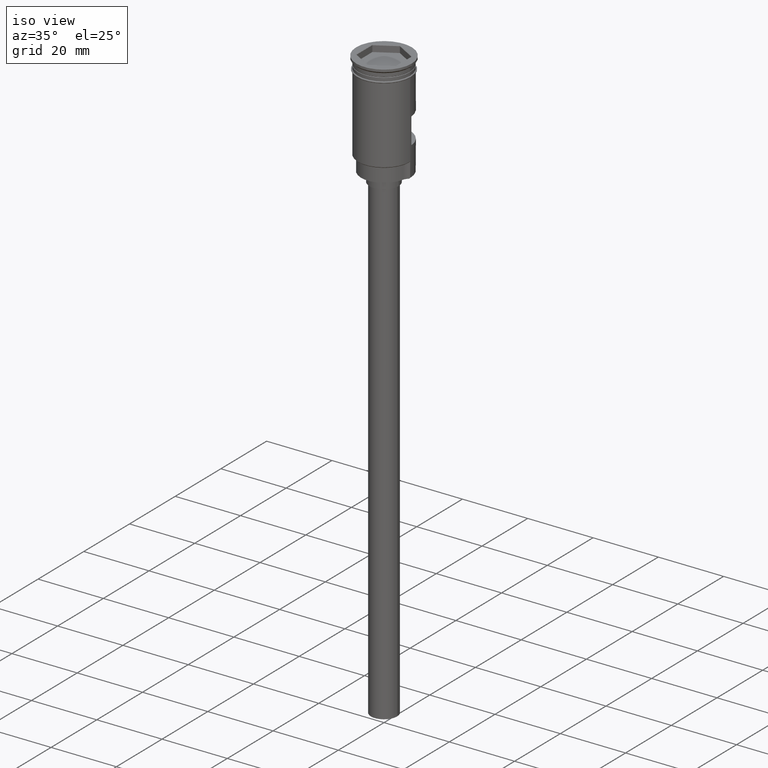
[diagram: clean part render]
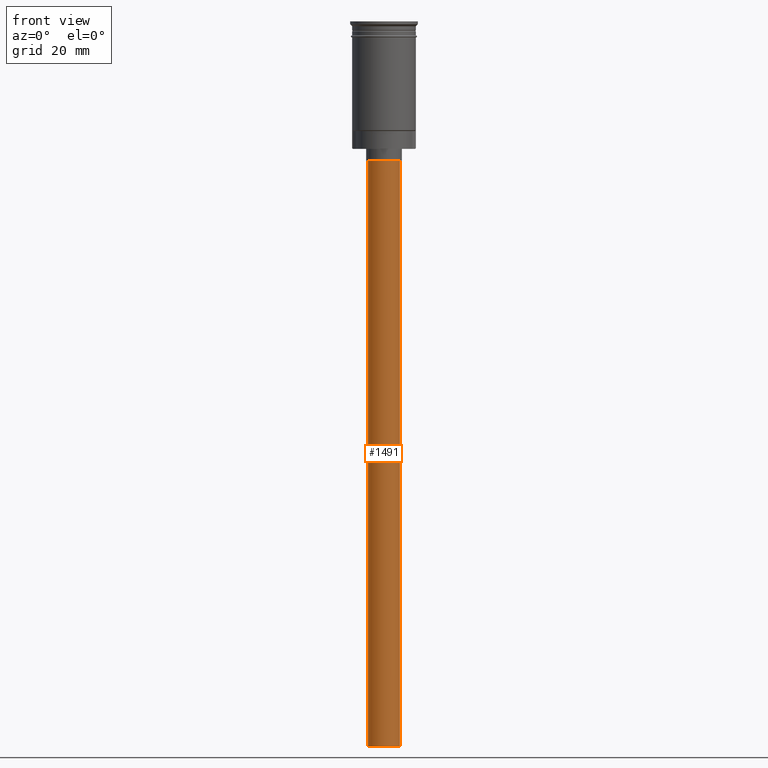
[diagram: tour spotlight — one face highlighted and labeled with its STEP entity id]
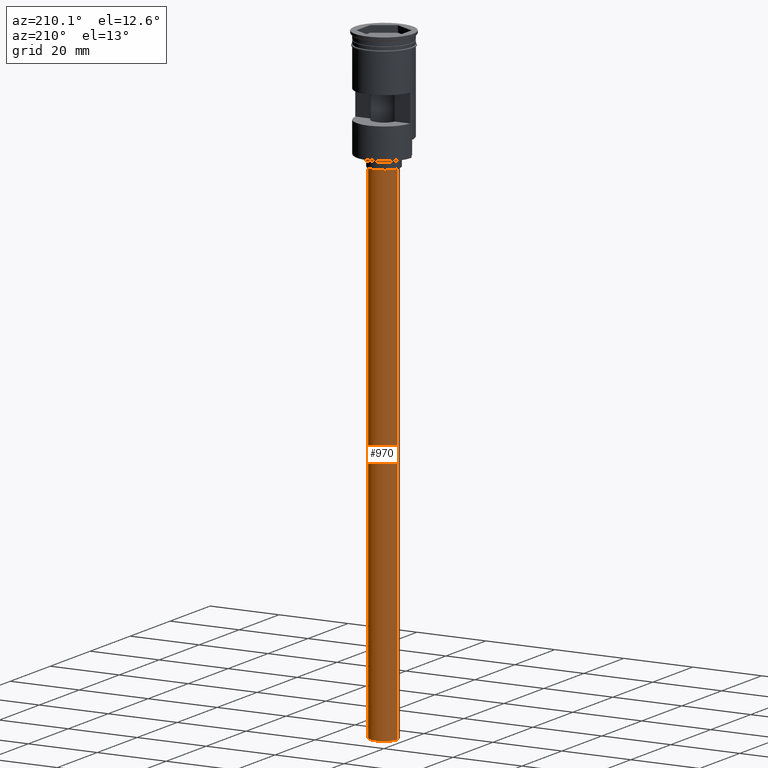
[diagram: tour spotlight — one face highlighted and labeled with its STEP entity id]
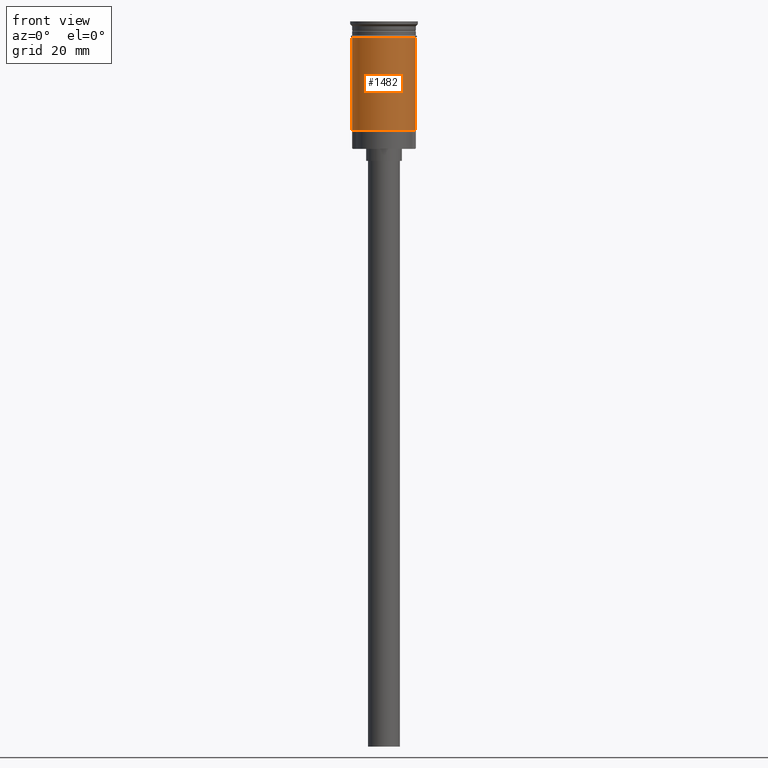
[diagram: tour spotlight — one face highlighted and labeled with its STEP entity id]
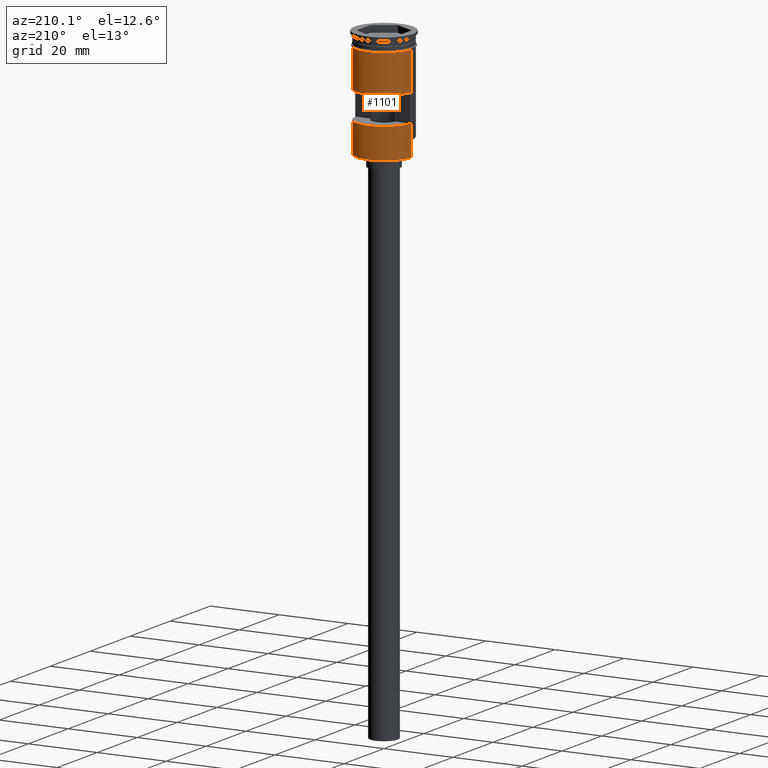
[diagram: tour spotlight — one face highlighted and labeled with its STEP entity id]
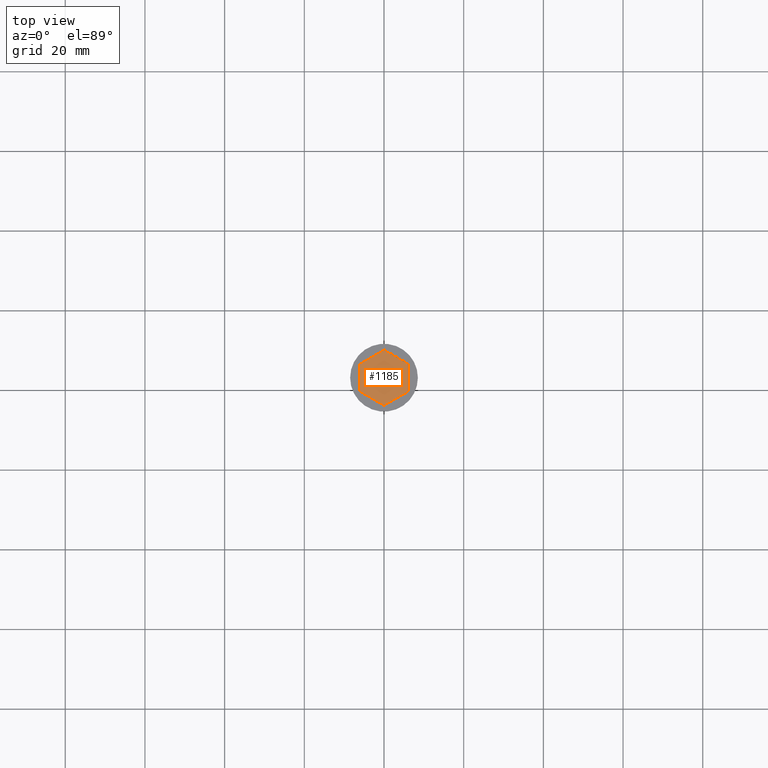
[diagram: tour spotlight — one face highlighted and labeled with its STEP entity id]
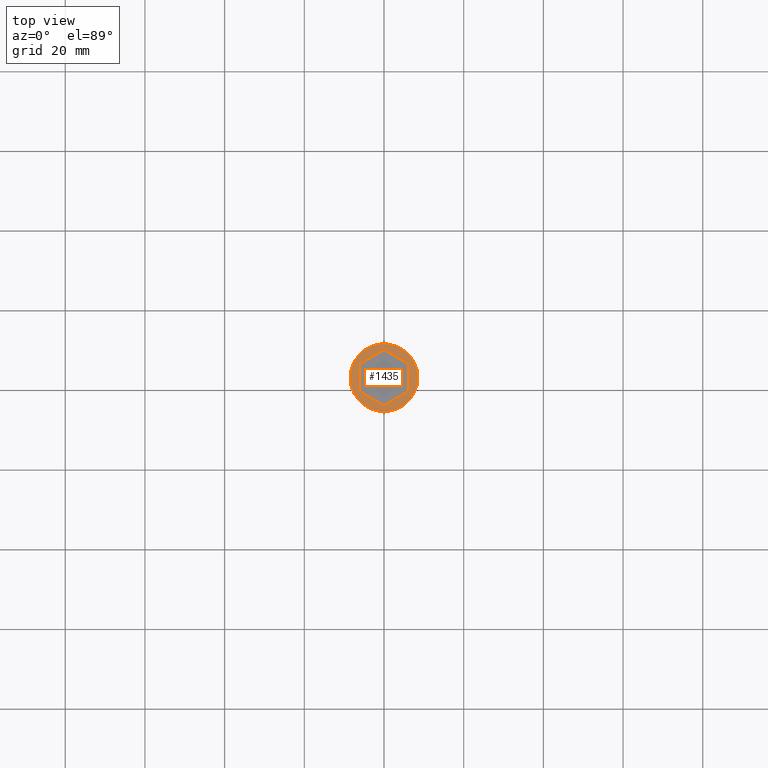
[diagram: tour spotlight — one face highlighted and labeled with its STEP entity id]
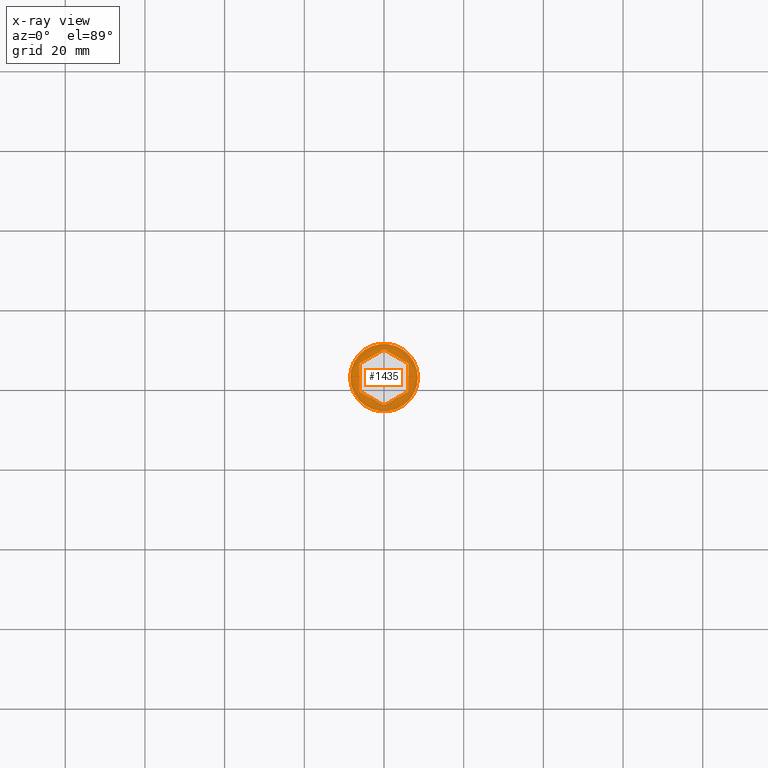
[diagram: x-ray of the same camera — body ghosted, this tour face saturated]
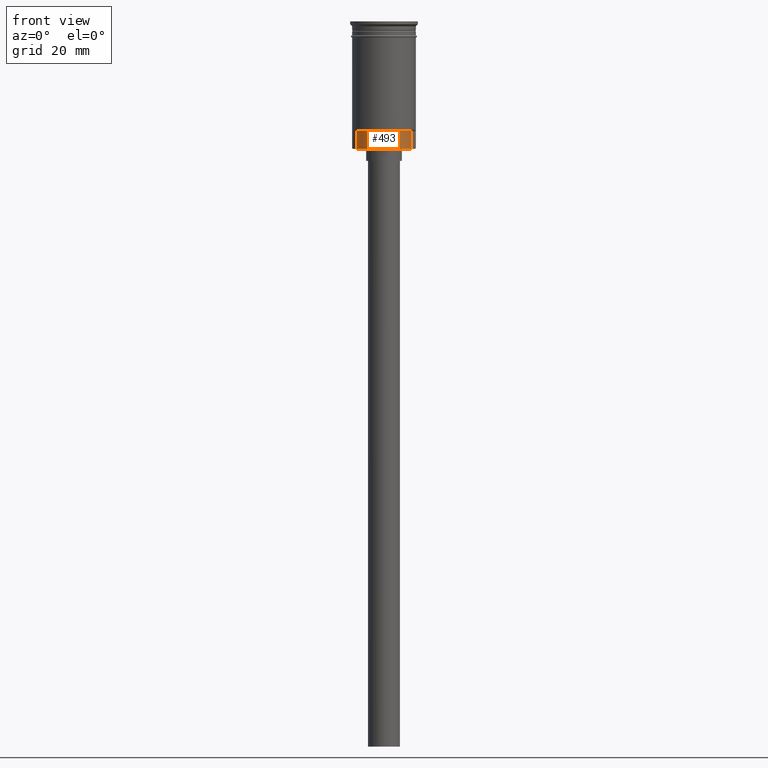
[diagram: tour spotlight — one face highlighted and labeled with its STEP entity id]
A machine part: a face-by-face anatomy tour. The part has 55 B-rep faces; the first image is the clean iso view, then the 7 largest visible faces are spotlighted one at a time (largest first), each with its STEP entity span.

Face 1 — front view, entity #1491. In plain terms, the highlighted cylindrical surface (edge-blend (fillet) strip) has radius 4 mm, axis along (-0, -0, 1).
Definition (entity closure, byte-faithful):
#19 = DIRECTION ( 'NONE',  ( -0.000000000000000000, -0.000000000000000000, 1.000000000000000000 ) ) ;
#53 = VERTEX_POINT ( 'NONE', #577 ) ;
#105 = EDGE_CURVE ( 'NONE', #567, #1289, #223, .T. ) ;
#223 = LINE ( 'NONE', #1086, #329 ) ;
#234 = DIRECTION ( 'NONE',  ( -0.000000000000000000, -0.000000000000000000, 1.000000000000000000 ) ) ;
#267 = CYLINDRICAL_SURFACE ( 'NONE', #1468, 4.000000000000000000 ) ;
#286 = EDGE_CURVE ( 'NONE', #53, #567, #1381, .T. ) ;
#329 = VECTOR ( 'NONE', #234, 1000.000000000000000 ) ;
#393 = DIRECTION ( 'NONE',  ( 0.000000000000000000, 0.000000000000000000, -1.000000000000000000 ) ) ;
#550 = LINE ( 'NONE', #1393, #1146 ) ;
#554 = CARTESIAN_POINT ( 'NONE',  ( 0.000000000000000000, 0.000000000000000000, -182.0000000000000000 ) ) ;
#567 = VERTEX_POINT ( 'NONE', #813 ) ;
#577 = CARTESIAN_POINT ( 'NONE',  ( 4.000000000000000000, 0.000000000000000000, -182.0000000000000000 ) ) ;
#578 = CARTESIAN_POINT ( 'NONE',  ( -4.000000000000000000, 4.898587196589412829E-16, -35.00000000000000000 ) ) ;
#652 = DIRECTION ( 'NONE',  ( -1.000000000000000000, 0.000000000000000000, 0.000000000000000000 ) ) ;
#673 = EDGE_LOOP ( 'NONE', ( #1579, #917, #819, #1015 ) ) ;
#725 = AXIS2_PLACEMENT_3D ( 'NONE', #881, #393, #1603 ) ;
#751 = DIRECTION ( 'NONE',  ( 1.000000000000000000, 0.000000000000000000, 0.000000000000000000 ) ) ;
#813 = CARTESIAN_POINT ( 'NONE',  ( -4.000000000000000000, 4.898587196589412829E-16, -182.0000000000000000 ) ) ;
#819 = ORIENTED_EDGE ( 'NONE', *, *, #1587, .T. ) ;
#865 = CARTESIAN_POINT ( 'NONE',  ( 4.000000000000000000, 0.000000000000000000, -35.00000000000000000 ) ) ;
#872 = FACE_OUTER_BOUND ( 'NONE', #673, .T. ) ;
#881 = CARTESIAN_POINT ( 'NONE',  ( 0.000000000000000000, 0.000000000000000000, -35.00000000000000000 ) ) ;
#896 = AXIS2_PLACEMENT_3D ( 'NONE', #554, #1045, #652 ) ;
#917 = ORIENTED_EDGE ( 'NONE', *, *, #286, .F. ) ;
#1015 = ORIENTED_EDGE ( 'NONE', *, *, #1091, .T. ) ;
#1045 = DIRECTION ( 'NONE',  ( 0.000000000000000000, 0.000000000000000000, -1.000000000000000000 ) ) ;
#1086 = CARTESIAN_POINT ( 'NONE',  ( -4.000000000000000000, 4.898587196589412829E-16, -182.0000000000000000 ) ) ;
#1091 = EDGE_CURVE ( 'NONE', #1424, #1289, #1140, .T. ) ;
#1140 = CIRCLE ( 'NONE', #725, 4.000000000000000000 ) ;
#1146 = VECTOR ( 'NONE', #1295, 1000.000000000000000 ) ;
#1289 = VERTEX_POINT ( 'NONE', #578 ) ;
#1295 = DIRECTION ( 'NONE',  ( -0.000000000000000000, -0.000000000000000000, 1.000000000000000000 ) ) ;
#1356 = CARTESIAN_POINT ( 'NONE',  ( 0.000000000000000000, 0.000000000000000000, -182.0000000000000000 ) ) ;
#1381 = CIRCLE ( 'NONE', #896, 4.000000000000000000 ) ;
#1393 = CARTESIAN_POINT ( 'NONE',  ( 4.000000000000000000, 0.000000000000000000, -182.0000000000000000 ) ) ;
#1424 = VERTEX_POINT ( 'NONE', #865 ) ;
#1468 = AXIS2_PLACEMENT_3D ( 'NONE', #1356, #19, #751 ) ;
#1491 = ADVANCED_FACE ( 'NONE', ( #872 ), #267, .T. ) ;
#1579 = ORIENTED_EDGE ( 'NONE', *, *, #105, .F. ) ;
#1587 = EDGE_CURVE ( 'NONE', #53, #1424, #550, .T. ) ;
#1603 = DIRECTION ( 'NONE',  ( -1.000000000000000000, 0.000000000000000000, 0.000000000000000000 ) ) ;

Face 2 — auxiliary view, entity #970. In plain terms, the highlighted cylindrical surface (edge-blend (fillet) strip) has radius 4 mm, axis along (-0, -0, 1).
Definition (entity closure, byte-faithful):
#15 = AXIS2_PLACEMENT_3D ( 'NONE', #1502, #1267, #28 ) ;
#28 = DIRECTION ( 'NONE',  ( -1.000000000000000000, 0.000000000000000000, 0.000000000000000000 ) ) ;
#39 = AXIS2_PLACEMENT_3D ( 'NONE', #579, #837, #967 ) ;
#53 = VERTEX_POINT ( 'NONE', #577 ) ;
#105 = EDGE_CURVE ( 'NONE', #567, #1289, #223, .T. ) ;
#123 = ORIENTED_EDGE ( 'NONE', *, *, #1136, .F. ) ;
#223 = LINE ( 'NONE', #1086, #329 ) ;
#234 = DIRECTION ( 'NONE',  ( -0.000000000000000000, -0.000000000000000000, 1.000000000000000000 ) ) ;
#245 = CYLINDRICAL_SURFACE ( 'NONE', #39, 4.000000000000000000 ) ;
#319 = ORIENTED_EDGE ( 'NONE', *, *, #105, .T. ) ;
#329 = VECTOR ( 'NONE', #234, 1000.000000000000000 ) ;
#406 = CARTESIAN_POINT ( 'NONE',  ( 0.000000000000000000, 0.000000000000000000, -35.00000000000000000 ) ) ;
#550 = LINE ( 'NONE', #1393, #1146 ) ;
#567 = VERTEX_POINT ( 'NONE', #813 ) ;
#577 = CARTESIAN_POINT ( 'NONE',  ( 4.000000000000000000, 0.000000000000000000, -182.0000000000000000 ) ) ;
#578 = CARTESIAN_POINT ( 'NONE',  ( -4.000000000000000000, 4.898587196589412829E-16, -35.00000000000000000 ) ) ;
#579 = CARTESIAN_POINT ( 'NONE',  ( 0.000000000000000000, 0.000000000000000000, -182.0000000000000000 ) ) ;
#793 = EDGE_CURVE ( 'NONE', #1289, #1424, #899, .T. ) ;
#813 = CARTESIAN_POINT ( 'NONE',  ( -4.000000000000000000, 4.898587196589412829E-16, -182.0000000000000000 ) ) ;
#837 = DIRECTION ( 'NONE',  ( -0.000000000000000000, -0.000000000000000000, 1.000000000000000000 ) ) ;
#843 = ORIENTED_EDGE ( 'NONE', *, *, #793, .T. ) ;
#865 = CARTESIAN_POINT ( 'NONE',  ( 4.000000000000000000, 0.000000000000000000, -35.00000000000000000 ) ) ;
#899 = CIRCLE ( 'NONE', #1336, 4.000000000000000000 ) ;
#900 = CIRCLE ( 'NONE', #15, 4.000000000000000000 ) ;
#967 = DIRECTION ( 'NONE',  ( 1.000000000000000000, 0.000000000000000000, 0.000000000000000000 ) ) ;
#970 = ADVANCED_FACE ( 'NONE', ( #975 ), #245, .T. ) ;
#975 = FACE_OUTER_BOUND ( 'NONE', #1186, .T. ) ;
#1021 = DIRECTION ( 'NONE',  ( -1.000000000000000000, 0.000000000000000000, 0.000000000000000000 ) ) ;
#1086 = CARTESIAN_POINT ( 'NONE',  ( -4.000000000000000000, 4.898587196589412829E-16, -182.0000000000000000 ) ) ;
#1136 = EDGE_CURVE ( 'NONE', #567, #53, #900, .T. ) ;
#1146 = VECTOR ( 'NONE', #1295, 1000.000000000000000 ) ;
#1186 = EDGE_LOOP ( 'NONE', ( #123, #319, #843, #1239 ) ) ;
#1239 = ORIENTED_EDGE ( 'NONE', *, *, #1587, .F. ) ;
#1267 = DIRECTION ( 'NONE',  ( 0.000000000000000000, 0.000000000000000000, -1.000000000000000000 ) ) ;
#1289 = VERTEX_POINT ( 'NONE', #578 ) ;
#1295 = DIRECTION ( 'NONE',  ( -0.000000000000000000, -0.000000000000000000, 1.000000000000000000 ) ) ;
#1336 = AXIS2_PLACEMENT_3D ( 'NONE', #406, #1498, #1021 ) ;
#1393 = CARTESIAN_POINT ( 'NONE',  ( 4.000000000000000000, 0.000000000000000000, -182.0000000000000000 ) ) ;
#1424 = VERTEX_POINT ( 'NONE', #865 ) ;
#1498 = DIRECTION ( 'NONE',  ( 0.000000000000000000, 0.000000000000000000, -1.000000000000000000 ) ) ;
#1502 = CARTESIAN_POINT ( 'NONE',  ( 0.000000000000000000, 0.000000000000000000, -182.0000000000000000 ) ) ;
#1587 = EDGE_CURVE ( 'NONE', #53, #1424, #550, .T. ) ;

Face 3 — front view, entity #1482. In plain terms, the highlighted cylindrical surface (edge-blend (fillet) strip) has radius 8 mm, axis along (-0, -0, 1).
Definition (entity closure, byte-faithful):
#27 = VERTEX_POINT ( 'NONE', #1325 ) ;
#87 = DIRECTION ( 'NONE',  ( -0.000000000000000000, -0.000000000000000000, 1.000000000000000000 ) ) ;
#99 = CARTESIAN_POINT ( 'NONE',  ( -8.000000000000000000, 9.797174393178825657E-16, -3.999999999999997335 ) ) ;
#122 = AXIS2_PLACEMENT_3D ( 'NONE', #1466, #87, #587 ) ;
#127 = AXIS2_PLACEMENT_3D ( 'NONE', #378, #1366, #758 ) ;
#157 = LINE ( 'NONE', #653, #1473 ) ;
#187 = DIRECTION ( 'NONE',  ( -0.000000000000000000, -0.000000000000000000, 1.000000000000000000 ) ) ;
#368 = CARTESIAN_POINT ( 'NONE',  ( 0.000000000000000000, 0.000000000000000000, 0.000000000000000000 ) ) ;
#378 = CARTESIAN_POINT ( 'NONE',  ( 0.000000000000000000, 0.000000000000000000, -3.999999999999997335 ) ) ;
#459 = VECTOR ( 'NONE', #1436, 1000.000000000000000 ) ;
#466 = VERTEX_POINT ( 'NONE', #99 ) ;
#494 = CARTESIAN_POINT ( 'NONE',  ( 8.000000000000000000, 0.000000000000000000, -3.999999999999997335 ) ) ;
#563 = CIRCLE ( 'NONE', #127, 8.000000000000000000 ) ;
#587 = DIRECTION ( 'NONE',  ( -1.000000000000000000, 0.000000000000000000, 0.000000000000000000 ) ) ;
#653 = CARTESIAN_POINT ( 'NONE',  ( -7.999999999999996447, 9.797174393178821713E-16, 0.000000000000000000 ) ) ;
#714 = EDGE_CURVE ( 'NONE', #1474, #1135, #1586, .T. ) ;
#758 = DIRECTION ( 'NONE',  ( 1.000000000000000000, 0.000000000000000000, 0.000000000000000000 ) ) ;
#818 = ORIENTED_EDGE ( 'NONE', *, *, #714, .T. ) ;
#845 = ORIENTED_EDGE ( 'NONE', *, *, #991, .T. ) ;
#863 = CARTESIAN_POINT ( 'NONE',  ( 7.999999999999996447, 0.000000000000000000, 0.000000000000000000 ) ) ;
#991 = EDGE_CURVE ( 'NONE', #27, #1474, #1467, .T. ) ;
#1070 = EDGE_LOOP ( 'NONE', ( #1073, #845, #818, #1301 ) ) ;
#1073 = ORIENTED_EDGE ( 'NONE', *, *, #1537, .F. ) ;
#1125 = CARTESIAN_POINT ( 'NONE',  ( 7.999999999999996447, 9.797174393178821713E-16, -27.29999999999996518 ) ) ;
#1135 = VERTEX_POINT ( 'NONE', #494 ) ;
#1235 = CYLINDRICAL_SURFACE ( 'NONE', #1264, 7.999999999999996447 ) ;
#1264 = AXIS2_PLACEMENT_3D ( 'NONE', #368, #1478, #1349 ) ;
#1301 = ORIENTED_EDGE ( 'NONE', *, *, #1499, .F. ) ;
#1325 = CARTESIAN_POINT ( 'NONE',  ( -7.999999999999992895, 0.000000000000000000, -27.29999999999996518 ) ) ;
#1349 = DIRECTION ( 'NONE',  ( 1.000000000000000000, 0.000000000000000000, 0.000000000000000000 ) ) ;
#1366 = DIRECTION ( 'NONE',  ( -0.000000000000000000, -0.000000000000000000, 1.000000000000000000 ) ) ;
#1436 = DIRECTION ( 'NONE',  ( -0.000000000000000000, -0.000000000000000000, 1.000000000000000000 ) ) ;
#1466 = CARTESIAN_POINT ( 'NONE',  ( 0.000000000000000000, 0.000000000000000000, -27.29999999999996518 ) ) ;
#1467 = CIRCLE ( 'NONE', #122, 7.999999999999996447 ) ;
#1473 = VECTOR ( 'NONE', #187, 1000.000000000000000 ) ;
#1474 = VERTEX_POINT ( 'NONE', #1125 ) ;
#1478 = DIRECTION ( 'NONE',  ( -0.000000000000000000, -0.000000000000000000, 1.000000000000000000 ) ) ;
#1482 = ADVANCED_FACE ( 'NONE', ( #1589 ), #1235, .T. ) ;
#1499 = EDGE_CURVE ( 'NONE', #466, #1135, #563, .T. ) ;
#1537 = EDGE_CURVE ( 'NONE', #27, #466, #157, .T. ) ;
#1586 = LINE ( 'NONE', #863, #459 ) ;
#1589 = FACE_OUTER_BOUND ( 'NONE', #1070, .T. ) ;

Face 4 — auxiliary view, entity #1101. In plain terms, the highlighted cylindrical surface (edge-blend (fillet) strip) has radius 8 mm, axis along (-0, -0, 1).
Definition (entity closure, byte-faithful):
#23 = EDGE_CURVE ( 'NONE', #74, #717, #1407, .T. ) ;
#27 = VERTEX_POINT ( 'NONE', #1325 ) ;
#38 = DIRECTION ( 'NONE',  ( 1.000000000000000000, 0.000000000000000000, 0.000000000000000000 ) ) ;
#47 = EDGE_LOOP ( 'NONE', ( #48, #993, #639, #802 ) ) ;
#48 = ORIENTED_EDGE ( 'NONE', *, *, #1250, .F. ) ;
#74 = VERTEX_POINT ( 'NONE', #709 ) ;
#79 = DIRECTION ( 'NONE',  ( -0.000000000000000000, 2.344220913482172642E-16, -1.000000000000000000 ) ) ;
#99 = CARTESIAN_POINT ( 'NONE',  ( -8.000000000000000000, 9.797174393178825657E-16, -3.999999999999997335 ) ) ;
#116 = CARTESIAN_POINT ( 'NONE',  ( 0.000000000000000000, 0.000000000000000000, -31.79999999999997939 ) ) ;
#137 = DIRECTION ( 'NONE',  ( -0.000000000000000000, -0.000000000000000000, 1.000000000000000000 ) ) ;
#145 = EDGE_CURVE ( 'NONE', #629, #509, #1064, .T. ) ;
#146 = AXIS2_PLACEMENT_3D ( 'NONE', #338, #79, #596 ) ;
#148 = CARTESIAN_POINT ( 'NONE',  ( -7.977468270071648604, 0.6000000000000000888, -23.00000000000000000 ) ) ;
#157 = LINE ( 'NONE', #653, #1473 ) ;
#173 = VERTEX_POINT ( 'NONE', #372 ) ;
#187 = DIRECTION ( 'NONE',  ( -0.000000000000000000, -0.000000000000000000, 1.000000000000000000 ) ) ;
#216 = DIRECTION ( 'NONE',  ( -1.000000000000000000, 0.000000000000000000, 0.000000000000000000 ) ) ;
#226 = ORIENTED_EDGE ( 'NONE', *, *, #631, .F. ) ;
#257 = AXIS2_PLACEMENT_3D ( 'NONE', #657, #1161, #38 ) ;
#274 = LINE ( 'NONE', #630, #878 ) ;
#311 = DIRECTION ( 'NONE',  ( 0.000000000000000000, 0.000000000000000000, -1.000000000000000000 ) ) ;
#338 = CARTESIAN_POINT ( 'NONE',  ( 0.000000000000000000, 0.000000000000000000, -15.00000000000000000 ) ) ;
#353 = AXIS2_PLACEMENT_3D ( 'NONE', #1198, #1319, #216 ) ;
#355 = AXIS2_PLACEMENT_3D ( 'NONE', #116, #636, #1485 ) ;
#372 = CARTESIAN_POINT ( 'NONE',  ( -7.977468270071648604, 0.6000000000000000888, -15.00000000000000000 ) ) ;
#420 = CARTESIAN_POINT ( 'NONE',  ( 7.977468270071648604, 0.6000000000000000888, 0.000000000000000000 ) ) ;
#459 = VECTOR ( 'NONE', #1436, 1000.000000000000000 ) ;
#462 = VECTOR ( 'NONE', #311, 1000.000000000000000 ) ;
#466 = VERTEX_POINT ( 'NONE', #99 ) ;
#494 = CARTESIAN_POINT ( 'NONE',  ( 8.000000000000000000, 0.000000000000000000, -3.999999999999997335 ) ) ;
#509 = VERTEX_POINT ( 'NONE', #1071 ) ;
#548 = ORIENTED_EDGE ( 'NONE', *, *, #1537, .T. ) ;
#596 = DIRECTION ( 'NONE',  ( 0.000000000000000000, -1.000000000000000000, -2.168404344971009854E-16 ) ) ;
#618 = EDGE_LOOP ( 'NONE', ( #779, #548, #1464, #1200, #226, #1404 ) ) ;
#629 = VERTEX_POINT ( 'NONE', #1597 ) ;
#630 = CARTESIAN_POINT ( 'NONE',  ( -7.977468270071648604, 0.6000000000000000888, 0.000000000000000000 ) ) ;
#631 = EDGE_CURVE ( 'NONE', #629, #1474, #883, .T. ) ;
#636 = DIRECTION ( 'NONE',  ( 0.000000000000000000, 0.000000000000000000, 1.000000000000000000 ) ) ;
#639 = ORIENTED_EDGE ( 'NONE', *, *, #1117, .F. ) ;
#653 = CARTESIAN_POINT ( 'NONE',  ( -7.999999999999996447, 9.797174393178821713E-16, 0.000000000000000000 ) ) ;
#657 = CARTESIAN_POINT ( 'NONE',  ( 0.000000000000000000, 0.000000000000000000, -3.999999999999997335 ) ) ;
#678 = CARTESIAN_POINT ( 'NONE',  ( 7.977468270071646828, 0.6000000000000000888, -15.00000000000000000 ) ) ;
#709 = CARTESIAN_POINT ( 'NONE',  ( 7.977468270071646828, 0.6000000000000000888, -23.00000000000000000 ) ) ;
#714 = EDGE_CURVE ( 'NONE', #1474, #1135, #1586, .T. ) ;
#717 = VERTEX_POINT ( 'NONE', #148 ) ;
#770 = CIRCLE ( 'NONE', #146, 7.999999999999996447 ) ;
#779 = ORIENTED_EDGE ( 'NONE', *, *, #1080, .T. ) ;
#801 = AXIS2_PLACEMENT_3D ( 'NONE', #1014, #999, #888 ) ;
#802 = ORIENTED_EDGE ( 'NONE', *, *, #23, .F. ) ;
#838 = EDGE_CURVE ( 'NONE', #1135, #466, #959, .T. ) ;
#863 = CARTESIAN_POINT ( 'NONE',  ( 7.999999999999996447, 0.000000000000000000, 0.000000000000000000 ) ) ;
#878 = VECTOR ( 'NONE', #1374, 1000.000000000000000 ) ;
#883 = LINE ( 'NONE', #1605, #1410 ) ;
#888 = DIRECTION ( 'NONE',  ( 1.000000000000000000, 0.000000000000000000, 0.000000000000000000 ) ) ;
#919 = LINE ( 'NONE', #420, #462 ) ;
#948 = EDGE_CURVE ( 'NONE', #173, #1559, #770, .T. ) ;
#959 = CIRCLE ( 'NONE', #257, 8.000000000000000000 ) ;
#993 = ORIENTED_EDGE ( 'NONE', *, *, #948, .F. ) ;
#999 = DIRECTION ( 'NONE',  ( -0.000000000000000000, -0.000000000000000000, 1.000000000000000000 ) ) ;
#1014 = CARTESIAN_POINT ( 'NONE',  ( 0.000000000000000000, 0.000000000000000000, 0.000000000000000000 ) ) ;
#1027 = LINE ( 'NONE', #1258, #1362 ) ;
#1064 = CIRCLE ( 'NONE', #355, 7.999999999999996447 ) ;
#1071 = CARTESIAN_POINT ( 'NONE',  ( -7.999999999999992895, 0.000000000000000000, -31.79999999999997939 ) ) ;
#1080 = EDGE_CURVE ( 'NONE', #509, #27, #1027, .T. ) ;
#1101 = ADVANCED_FACE ( 'NONE', ( #1368, #1380 ), #1496, .T. ) ;
#1117 = EDGE_CURVE ( 'NONE', #717, #173, #274, .T. ) ;
#1125 = CARTESIAN_POINT ( 'NONE',  ( 7.999999999999996447, 9.797174393178821713E-16, -27.29999999999996518 ) ) ;
#1135 = VERTEX_POINT ( 'NONE', #494 ) ;
#1161 = DIRECTION ( 'NONE',  ( -0.000000000000000000, -0.000000000000000000, 1.000000000000000000 ) ) ;
#1198 = CARTESIAN_POINT ( 'NONE',  ( 0.000000000000000000, 0.000000000000000000, -23.00000000000000000 ) ) ;
#1200 = ORIENTED_EDGE ( 'NONE', *, *, #714, .F. ) ;
#1250 = EDGE_CURVE ( 'NONE', #1559, #74, #919, .T. ) ;
#1258 = CARTESIAN_POINT ( 'NONE',  ( -7.999999999999992895, 0.000000000000000000, -32.00000000000000000 ) ) ;
#1319 = DIRECTION ( 'NONE',  ( 0.000000000000000000, 0.000000000000000000, 1.000000000000000000 ) ) ;
#1325 = CARTESIAN_POINT ( 'NONE',  ( -7.999999999999992895, 0.000000000000000000, -27.29999999999996518 ) ) ;
#1362 = VECTOR ( 'NONE', #137, 1000.000000000000000 ) ;
#1368 = FACE_BOUND ( 'NONE', #47, .T. ) ;
#1374 = DIRECTION ( 'NONE',  ( -0.000000000000000000, -0.000000000000000000, 1.000000000000000000 ) ) ;
#1380 = FACE_OUTER_BOUND ( 'NONE', #618, .T. ) ;
#1404 = ORIENTED_EDGE ( 'NONE', *, *, #145, .T. ) ;
#1407 = CIRCLE ( 'NONE', #353, 7.999999999999996447 ) ;
#1410 = VECTOR ( 'NONE', #1469, 1000.000000000000000 ) ;
#1436 = DIRECTION ( 'NONE',  ( -0.000000000000000000, -0.000000000000000000, 1.000000000000000000 ) ) ;
#1464 = ORIENTED_EDGE ( 'NONE', *, *, #838, .F. ) ;
#1469 = DIRECTION ( 'NONE',  ( -0.000000000000000000, -0.000000000000000000, 1.000000000000000000 ) ) ;
#1473 = VECTOR ( 'NONE', #187, 1000.000000000000000 ) ;
#1474 = VERTEX_POINT ( 'NONE', #1125 ) ;
#1485 = DIRECTION ( 'NONE',  ( -1.000000000000000000, 0.000000000000000000, 0.000000000000000000 ) ) ;
#1496 = CYLINDRICAL_SURFACE ( 'NONE', #801, 7.999999999999996447 ) ;
#1537 = EDGE_CURVE ( 'NONE', #27, #466, #157, .T. ) ;
#1559 = VERTEX_POINT ( 'NONE', #678 ) ;
#1586 = LINE ( 'NONE', #863, #459 ) ;
#1597 = CARTESIAN_POINT ( 'NONE',  ( 7.999999999999992895, 9.797174393178817769E-16, -31.79999999999997939 ) ) ;
#1605 = CARTESIAN_POINT ( 'NONE',  ( 7.999999999999992895, 9.797174393178817769E-16, -32.00000000000000000 ) ) ;

Face 5 — top view, entity #1185. In plain terms, the highlighted planar face has unit normal (-0, 0, 1).
Definition (entity closure, byte-faithful):
#34 = ORIENTED_EDGE ( 'NONE', *, *, #421, .T. ) ;
#119 = ORIENTED_EDGE ( 'NONE', *, *, #370, .T. ) ;
#169 = ORIENTED_EDGE ( 'NONE', *, *, #708, .T. ) ;
#215 = CARTESIAN_POINT ( 'NONE',  ( -3.000000000000000888, -5.196152422706632024, -2.000000000000000000 ) ) ;
#221 = CARTESIAN_POINT ( 'NONE',  ( -3.000000000000000000, 5.196152422706630247, -2.000000000000000000 ) ) ;
#225 = VERTEX_POINT ( 'NONE', #504 ) ;
#230 = DIRECTION ( 'NONE',  ( -0.8660254037844385966, -0.5000000000000001110, 0.000000000000000000 ) ) ;
#255 = CARTESIAN_POINT ( 'NONE',  ( -6.000000000000000000, -3.464101615137754830, -2.000000000000000000 ) ) ;
#296 = CARTESIAN_POINT ( 'NONE',  ( 2.999999999999998668, 5.196152422706632024, -2.000000000000000000 ) ) ;
#321 = ORIENTED_EDGE ( 'NONE', *, *, #384, .T. ) ;
#360 = AXIS2_PLACEMENT_3D ( 'NONE', #1534, #1546, #568 ) ;
#370 = EDGE_CURVE ( 'NONE', #1420, #1475, #1401, .T. ) ;
#376 = CARTESIAN_POINT ( 'NONE',  ( 6.000000000000000000, -3.464101615137756607, -2.000000000000000000 ) ) ;
#384 = EDGE_CURVE ( 'NONE', #795, #1120, #395, .T. ) ;
#395 = LINE ( 'NONE', #296, #1007 ) ;
#415 = ORIENTED_EDGE ( 'NONE', *, *, #562, .T. ) ;
#421 = EDGE_CURVE ( 'NONE', #1475, #225, #944, .T. ) ;
#504 = CARTESIAN_POINT ( 'NONE',  ( 1.734723475976807094E-15, -6.928203230275511437, -2.000000000000000000 ) ) ;
#534 = VECTOR ( 'NONE', #637, 1000.000000000000000 ) ;
#549 = CARTESIAN_POINT ( 'NONE',  ( -6.000000000000000000, -7.511572993685799101E-16, -2.000000000000000000 ) ) ;
#562 = EDGE_CURVE ( 'NONE', #1120, #1420, #1322, .T. ) ;
#568 = DIRECTION ( 'NONE',  ( 1.000000000000000000, 0.000000000000000000, 0.000000000000000000 ) ) ;
#593 = VERTEX_POINT ( 'NONE', #376 ) ;
#615 = LINE ( 'NONE', #1119, #534 ) ;
#637 = DIRECTION ( 'NONE',  ( 0.000000000000000000, 1.000000000000000000, -0.000000000000000000 ) ) ;
#708 = EDGE_CURVE ( 'NONE', #225, #593, #1484, .T. ) ;
#745 = VECTOR ( 'NONE', #1430, 1000.000000000000000 ) ;
#767 = CARTESIAN_POINT ( 'NONE',  ( 6.000000000000000000, 3.464101615137754830, -2.000000000000000000 ) ) ;
#771 = CARTESIAN_POINT ( 'NONE',  ( 0.000000000000000000, 6.928203230275507885, -2.000000000000000000 ) ) ;
#795 = VERTEX_POINT ( 'NONE', #767 ) ;
#842 = CARTESIAN_POINT ( 'NONE',  ( -6.000000000000000000, 3.464101615137752166, -2.000000000000000000 ) ) ;
#876 = VECTOR ( 'NONE', #1276, 1000.000000000000000 ) ;
#944 = LINE ( 'NONE', #215, #745 ) ;
#1007 = VECTOR ( 'NONE', #1023, 1000.000000000000114 ) ;
#1023 = DIRECTION ( 'NONE',  ( -0.8660254037844387076, 0.4999999999999998890, 0.000000000000000000 ) ) ;
#1107 = CARTESIAN_POINT ( 'NONE',  ( 3.000000000000001776, -5.196152422706633800, -2.000000000000000000 ) ) ;
#1111 = ORIENTED_EDGE ( 'NONE', *, *, #1437, .T. ) ;
#1119 = CARTESIAN_POINT ( 'NONE',  ( 6.000000000000000000, 0.000000000000000000, -2.000000000000000000 ) ) ;
#1120 = VERTEX_POINT ( 'NONE', #771 ) ;
#1159 = FACE_OUTER_BOUND ( 'NONE', #1333, .T. ) ;
#1185 = ADVANCED_FACE ( 'NONE', ( #1159 ), #1405, .T. ) ;
#1249 = DIRECTION ( 'NONE',  ( 0.8660254037844385966, 0.5000000000000001110, 0.000000000000000000 ) ) ;
#1276 = DIRECTION ( 'NONE',  ( 1.251928832280966188E-16, -1.000000000000000000, 0.000000000000000000 ) ) ;
#1322 = LINE ( 'NONE', #221, #1465 ) ;
#1333 = EDGE_LOOP ( 'NONE', ( #321, #415, #119, #34, #169, #1111 ) ) ;
#1401 = LINE ( 'NONE', #549, #876 ) ;
#1405 = PLANE ( 'NONE',  #360 ) ;
#1420 = VERTEX_POINT ( 'NONE', #842 ) ;
#1430 = DIRECTION ( 'NONE',  ( 0.8660254037844385966, -0.5000000000000001110, 0.000000000000000000 ) ) ;
#1437 = EDGE_CURVE ( 'NONE', #593, #795, #615, .T. ) ;
#1465 = VECTOR ( 'NONE', #230, 1000.000000000000000 ) ;
#1475 = VERTEX_POINT ( 'NONE', #255 ) ;
#1484 = LINE ( 'NONE', #1107, #1540 ) ;
#1534 = CARTESIAN_POINT ( 'NONE',  ( 0.000000000000000000, 0.000000000000000000, -2.000000000000000000 ) ) ;
#1540 = VECTOR ( 'NONE', #1249, 1000.000000000000000 ) ;
#1546 = DIRECTION ( 'NONE',  ( -0.000000000000000000, 0.000000000000000000, 1.000000000000000000 ) ) ;

Face 6 — top view, entity #1435. An x-ray twin of the same camera follows (body ghosted, this face saturated) — the face is partly hidden behind the body. In plain terms, the highlighted planar face has unit normal (0, -0, 1).
Definition (entity closure, byte-faithful):
#13 = EDGE_CURVE ( 'NONE', #1293, #348, #1442, .T. ) ;
#20 = EDGE_LOOP ( 'NONE', ( #1278, #787 ) ) ;
#83 = EDGE_CURVE ( 'NONE', #348, #608, #1207, .T. ) ;
#111 = EDGE_CURVE ( 'NONE', #608, #655, #965, .T. ) ;
#121 = CARTESIAN_POINT ( 'NONE',  ( -6.100000000000008527, 3.521836642056717537, 0.000000000000000000 ) ) ;
#147 = AXIS2_PLACEMENT_3D ( 'NONE', #515, #646, #387 ) ;
#203 = EDGE_CURVE ( 'NONE', #1483, #1151, #1003, .T. ) ;
#232 = AXIS2_PLACEMENT_3D ( 'NONE', #1228, #371, #1129 ) ;
#248 = DIRECTION ( 'NONE',  ( 1.000000000000000000, 0.000000000000000000, 0.000000000000000000 ) ) ;
#253 = CARTESIAN_POINT ( 'NONE',  ( 6.100000000000007638, -3.521836642056722866, 0.000000000000000000 ) ) ;
#263 = PLANE ( 'NONE',  #855 ) ;
#299 = DIRECTION ( 'NONE',  ( 0.8660254037844385966, 0.5000000000000002220, 0.000000000000000000 ) ) ;
#302 = VECTOR ( 'NONE', #1500, 1000.000000000000000 ) ;
#348 = VERTEX_POINT ( 'NONE', #1522 ) ;
#352 = ORIENTED_EDGE ( 'NONE', *, *, #203, .T. ) ;
#361 = DIRECTION ( 'NONE',  ( 0.8660254037844387076, -0.4999999999999998335, 0.000000000000000000 ) ) ;
#362 = DIRECTION ( 'NONE',  ( -0.8660254037844385966, 0.5000000000000002220, 0.000000000000000000 ) ) ;
#371 = DIRECTION ( 'NONE',  ( -0.000000000000000000, -0.000000000000000000, 1.000000000000000000 ) ) ;
#373 = DIRECTION ( 'NONE',  ( 0.000000000000000000, -0.000000000000000000, 1.000000000000000000 ) ) ;
#387 = DIRECTION ( 'NONE',  ( 1.000000000000000000, 0.000000000000000000, 0.000000000000000000 ) ) ;
#414 = CARTESIAN_POINT ( 'NONE',  ( 8.500000000000000000, 0.000000000000000000, 0.000000000000000000 ) ) ;
#427 = CARTESIAN_POINT ( 'NONE',  ( -0.05000000000000349998, 7.014805770653958383, 0.000000000000000000 ) ) ;
#477 = CARTESIAN_POINT ( 'NONE',  ( -9.509961900721253228E-16, 7.043673284113440403, 0.000000000000000000 ) ) ;
#501 = VECTOR ( 'NONE', #361, 1000.000000000000000 ) ;
#515 = CARTESIAN_POINT ( 'NONE',  ( 0.000000000000000000, 0.000000000000000000, 0.000000000000000000 ) ) ;
#542 = ORIENTED_EDGE ( 'NONE', *, *, #13, .T. ) ;
#599 = CARTESIAN_POINT ( 'NONE',  ( 6.050000000000003375, 3.550704155516203553, 0.000000000000000000 ) ) ;
#608 = VERTEX_POINT ( 'NONE', #253 ) ;
#623 = CARTESIAN_POINT ( 'NONE',  ( 0.000000000000000000, 0.000000000000000000, 0.000000000000000000 ) ) ;
#643 = EDGE_CURVE ( 'NONE', #736, #1517, #667, .T. ) ;
#646 = DIRECTION ( 'NONE',  ( -0.000000000000000000, -0.000000000000000000, 1.000000000000000000 ) ) ;
#655 = VERTEX_POINT ( 'NONE', #746 ) ;
#667 = CIRCLE ( 'NONE', #232, 8.500000000000000000 ) ;
#676 = ORIENTED_EDGE ( 'NONE', *, *, #83, .T. ) ;
#715 = DIRECTION ( 'NONE',  ( -0.8660254037844385966, -0.5000000000000002220, 0.000000000000000000 ) ) ;
#736 = VERTEX_POINT ( 'NONE', #414 ) ;
#746 = CARTESIAN_POINT ( 'NONE',  ( 6.606856988583603042E-17, -7.043673284113445732, 0.000000000000000000 ) ) ;
#777 = ORIENTED_EDGE ( 'NONE', *, *, #1206, .T. ) ;
#787 = ORIENTED_EDGE ( 'NONE', *, *, #1472, .T. ) ;
#831 = VECTOR ( 'NONE', #362, 999.9999999999998863 ) ;
#855 = AXIS2_PLACEMENT_3D ( 'NONE', #623, #373, #248 ) ;
#879 = CARTESIAN_POINT ( 'NONE',  ( -6.100000000000008527, 3.464101615137752166, 0.000000000000000000 ) ) ;
#910 = LINE ( 'NONE', #427, #984 ) ;
#918 = EDGE_LOOP ( 'NONE', ( #352, #777, #542, #676, #1604, #940 ) ) ;
#932 = CIRCLE ( 'NONE', #147, 8.500000000000000000 ) ;
#940 = ORIENTED_EDGE ( 'NONE', *, *, #1423, .T. ) ;
#954 = VECTOR ( 'NONE', #715, 999.9999999999998863 ) ;
#965 = LINE ( 'NONE', #1449, #954 ) ;
#979 = CARTESIAN_POINT ( 'NONE',  ( 6.100000000000007638, -3.464101615137756607, 0.000000000000000000 ) ) ;
#984 = VECTOR ( 'NONE', #299, 999.9999999999998863 ) ;
#990 = FACE_BOUND ( 'NONE', #918, .T. ) ;
#1003 = LINE ( 'NONE', #879, #302 ) ;
#1129 = DIRECTION ( 'NONE',  ( 1.000000000000000000, 0.000000000000000000, 0.000000000000000000 ) ) ;
#1131 = CARTESIAN_POINT ( 'NONE',  ( -8.500000000000000000, 1.040949779275250140E-15, 0.000000000000000000 ) ) ;
#1151 = VERTEX_POINT ( 'NONE', #121 ) ;
#1191 = DIRECTION ( 'NONE',  ( 0.000000000000000000, -1.000000000000000000, -0.000000000000000000 ) ) ;
#1206 = EDGE_CURVE ( 'NONE', #1151, #1293, #910, .T. ) ;
#1207 = LINE ( 'NONE', #979, #1563 ) ;
#1213 = CARTESIAN_POINT ( 'NONE',  ( -6.050000000000004263, -3.550704155516205773, 0.000000000000000000 ) ) ;
#1228 = CARTESIAN_POINT ( 'NONE',  ( 0.000000000000000000, 0.000000000000000000, 0.000000000000000000 ) ) ;
#1246 = CARTESIAN_POINT ( 'NONE',  ( -6.100000000000007638, -3.521836642056722866, 0.000000000000000000 ) ) ;
#1278 = ORIENTED_EDGE ( 'NONE', *, *, #643, .T. ) ;
#1293 = VERTEX_POINT ( 'NONE', #477 ) ;
#1326 = LINE ( 'NONE', #1213, #831 ) ;
#1423 = EDGE_CURVE ( 'NONE', #655, #1483, #1326, .T. ) ;
#1435 = ADVANCED_FACE ( 'NONE', ( #990, #1601 ), #263, .T. ) ;
#1442 = LINE ( 'NONE', #599, #501 ) ;
#1449 = CARTESIAN_POINT ( 'NONE',  ( 0.05000000000000536654, -7.014805770653961048, 0.000000000000000000 ) ) ;
#1472 = EDGE_CURVE ( 'NONE', #1517, #736, #932, .T. ) ;
#1483 = VERTEX_POINT ( 'NONE', #1246 ) ;
#1500 = DIRECTION ( 'NONE',  ( -1.251928832280966188E-16, 1.000000000000000000, 0.000000000000000000 ) ) ;
#1517 = VERTEX_POINT ( 'NONE', #1131 ) ;
#1522 = CARTESIAN_POINT ( 'NONE',  ( 6.100000000000007638, 3.521836642056720201, 0.000000000000000000 ) ) ;
#1563 = VECTOR ( 'NONE', #1191, 1000.000000000000000 ) ;
#1601 = FACE_OUTER_BOUND ( 'NONE', #20, .T. ) ;
#1604 = ORIENTED_EDGE ( 'NONE', *, *, #111, .T. ) ;

Face 7 — front view, entity #493. In plain terms, the highlighted cylindrical surface (edge-blend (fillet) strip) has radius 7.05 mm, axis along (-0, -0, 1).
Definition (entity closure, byte-faithful):
#6 = CARTESIAN_POINT ( 'NONE',  ( 0.000000000000000000, 0.000000000000000000, -32.00000000000000000 ) ) ;
#45 = EDGE_CURVE ( 'NONE', #159, #61, #1567, .T. ) ;
#61 = VERTEX_POINT ( 'NONE', #1304 ) ;
#77 = DIRECTION ( 'NONE',  ( -0.000000000000000000, -0.000000000000000000, 1.000000000000000000 ) ) ;
#92 = VECTOR ( 'NONE', #328, 1000.000000000000000 ) ;
#97 = ORIENTED_EDGE ( 'NONE', *, *, #603, .F. ) ;
#159 = VERTEX_POINT ( 'NONE', #1130 ) ;
#244 = EDGE_CURVE ( 'NONE', #61, #1062, #956, .T. ) ;
#281 = ORIENTED_EDGE ( 'NONE', *, *, #45, .T. ) ;
#328 = DIRECTION ( 'NONE',  ( -0.000000000000000000, -0.000000000000000000, 1.000000000000000000 ) ) ;
#346 = CYLINDRICAL_SURFACE ( 'NONE', #796, 7.049999999999998934 ) ;
#458 = AXIS2_PLACEMENT_3D ( 'NONE', #740, #1477, #997 ) ;
#489 = DIRECTION ( 'NONE',  ( -1.000000000000000000, 0.000000000000000000, 0.000000000000000000 ) ) ;
#493 = ADVANCED_FACE ( 'NONE', ( #1095 ), #346, .T. ) ;
#519 = LINE ( 'NONE', #1503, #92 ) ;
#565 = CARTESIAN_POINT ( 'NONE',  ( 0.000000000000000000, 0.000000000000000000, -32.00000000000000000 ) ) ;
#591 = DIRECTION ( 'NONE',  ( -0.000000000000000000, -0.000000000000000000, 1.000000000000000000 ) ) ;
#603 = EDGE_CURVE ( 'NONE', #159, #1533, #983, .T. ) ;
#740 = CARTESIAN_POINT ( 'NONE',  ( 0.000000000000000000, 0.000000000000000000, -27.50000000000000355 ) ) ;
#756 = EDGE_CURVE ( 'NONE', #1533, #1062, #519, .T. ) ;
#796 = AXIS2_PLACEMENT_3D ( 'NONE', #565, #591, #1575 ) ;
#916 = CARTESIAN_POINT ( 'NONE',  ( -6.839661847014926188, -1.709247149621246686, -32.00000000000000000 ) ) ;
#926 = AXIS2_PLACEMENT_3D ( 'NONE', #6, #977, #489 ) ;
#931 = ORIENTED_EDGE ( 'NONE', *, *, #756, .F. ) ;
#946 = CARTESIAN_POINT ( 'NONE',  ( 6.839661847014925300, -1.709247149621250017, -32.00000000000000000 ) ) ;
#956 = CIRCLE ( 'NONE', #458, 7.049999999999998934 ) ;
#977 = DIRECTION ( 'NONE',  ( 0.000000000000000000, 0.000000000000000000, -1.000000000000000000 ) ) ;
#983 = CIRCLE ( 'NONE', #926, 7.049999999999998934 ) ;
#997 = DIRECTION ( 'NONE',  ( -1.000000000000000000, 0.000000000000000000, 0.000000000000000000 ) ) ;
#1029 = VECTOR ( 'NONE', #77, 1000.000000000000000 ) ;
#1050 = EDGE_LOOP ( 'NONE', ( #1487, #931, #97, #281 ) ) ;
#1062 = VERTEX_POINT ( 'NONE', #1238 ) ;
#1095 = FACE_OUTER_BOUND ( 'NONE', #1050, .T. ) ;
#1130 = CARTESIAN_POINT ( 'NONE',  ( 6.839661847014925300, -1.709247149621250017, -32.00000000000000000 ) ) ;
#1238 = CARTESIAN_POINT ( 'NONE',  ( -6.839661847014926188, -1.709247149621246686, -27.50000000000000355 ) ) ;
#1304 = CARTESIAN_POINT ( 'NONE',  ( 6.839661847014925300, -1.709247149621250017, -27.50000000000000355 ) ) ;
#1477 = DIRECTION ( 'NONE',  ( 0.000000000000000000, 0.000000000000000000, -1.000000000000000000 ) ) ;
#1487 = ORIENTED_EDGE ( 'NONE', *, *, #244, .T. ) ;
#1503 = CARTESIAN_POINT ( 'NONE',  ( -6.839661847014926188, -1.709247149621246686, -32.00000000000000000 ) ) ;
#1533 = VERTEX_POINT ( 'NONE', #916 ) ;
#1567 = LINE ( 'NONE', #946, #1029 ) ;
#1575 = DIRECTION ( 'NONE',  ( 1.000000000000000000, 0.000000000000000000, 0.000000000000000000 ) ) ;